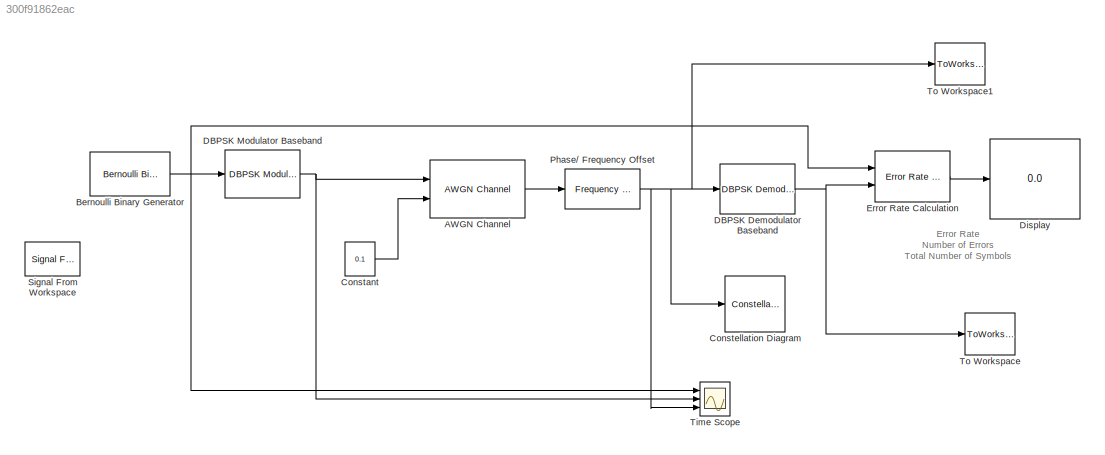
MODEL slx_300f91862eac
KIND model
CONFIG AbsTol = auto
CONFIG EnableMultiTasking = off
CONFIG FixedStep = auto
CONFIG MaxStep = auto
CONFIG MinStep = auto
CONFIG RelTol = 1e-3
CONFIG SampleTimeConstraint = Unconstrained
CONFIG SolverName = VariableStepAuto
CONFIG StartTime = 0.0
CONFIG StopTime = 5
BLOCK [Reference] AWGN Channel  REF=commchan3/AWGN
Channel
  Ports = [2, 1]
  SourceBlock = commchan3/AWGN\nChannel
  SourceProductBaseCode = CM
  SourceType = AWGN Channel
  UserDataPersistent = on
BLOCK [Reference] Bernoulli Binary Generator  REF=commrandsrc3/Bernoulli Binary
Generator
  Ports = [0, 1]
  SourceBlock = commrandsrc3/Bernoulli Binary\nGenerator
  SourceProductBaseCode = CM
  SourceType = Bernoulli Binary Generator
BLOCK [Constant] Constant
  Value = 0.1
  VectorParams1D = off
BLOCK [ConstellationDiagram] Constellation Diagram
  Ports = [1]
  ScopeSpecificationString = comm.scopes.ConstellationDiagramBlockCfg('CurrentConfiguration', extmgr.ConfigurationSet(extmgr.Configuration('Core','General UI',true),extmgr.Configuration('Core','Source UI',true),extmgr.Configuration('Sources','WiredSimulink',true),extmgr.Configuration('Sources','Simulink',false),extmgr.Configuration('Sources','File',false),extmgr.Configuration('Sources','Workspace',false),extmgr.Configuration(...<+1378ch>
BLOCK [Reference] DBPSK Demodulator Baseband  REF=commdigbbndpm3/DBPSK
Demodulator
Baseband
  Ports = [1, 1]
  SourceBlock = commdigbbndpm3/DBPSK\nDemodulator\nBaseband
  SourceProductBaseCode = CM
  SourceType = DBPSK Demodulator Baseband
BLOCK [Reference] DBPSK Modulator Baseband  REF=commdigbbndpm3/DBPSK
Modulator
Baseband
  Ports = [1, 1]
  SourceBlock = commdigbbndpm3/DBPSK\nModulator\nBaseband
  SourceProductBaseCode = CM
  SourceType = DBPSK Modulator Baseband
BLOCK [Display] Display
  Decimation = 1
  Ports = [1]
BLOCK [Reference] Error Rate Calculation  REF=commsink2/Error Rate
Calculation
  Ports = [2, 1]
  SourceBlock = commsink2/Error Rate\nCalculation
  SourceProductBaseCode = CM
  SourceType = Error Rate Calculation
BLOCK [Reference] Phase// Frequency Offset  REF=commrflib2/Phase//
Frequency
Offset
  Ports = [1, 1]
  SourceBlock = commrflib2/Phase//\nFrequency\nOffset
  SourceProductBaseCode = CM
  SourceType = Phase/Frequency Offset
BLOCK [Reference] Signal From Workspace  REF=dspsrcs4/Signal From
Workspace
  Commented = on
  Ports = [0, 1]
  SourceBlock = dspsrcs4/Signal From\nWorkspace
  SourceProductBaseCode = DS
  SourceType = Signal From Workspace
BLOCK [Scope] Time Scope
  DefaultConfigurationName = spbscopes.TimeScopeBlockCfg
  Floating = off
  NumInputPorts = 3
  Ports = [3]
  ScopeSpecificationString = spbscopes.TimeScopeBlockCfg('CurrentConfiguration', extmgr.ConfigurationSet(extmgr.Configuration('Core','General UI',true),extmgr.Configuration('Core','Source UI',true),extmgr.Configuration('Sources','WiredSimulink',true),extmgr.Configuration('Visuals','Time Domain',true,'DisplayLayoutDimensions',[3 1],'DisplayPropertyDefaults',struct('YLabelReal','Amplitude','AxesColor',[0 0 0],'ColorOrder',[1 1 ...<+3078ch>
  UserDataPersistent = on
BLOCK [ToWorkspace] To Workspace
  MaxDataPoints = 2560
  Ports = [1]
  SampleTime = -1
  Save2DSignal = 2-D array (concatenate along first dimension)
  VariableName = zout
BLOCK [ToWorkspace] To Workspace1
  MaxDataPoints = 2560
  Ports = [1]
  SampleTime = -1
  Save2DSignal = 2-D array (concatenate along first dimension)
  VariableName = yout1
ANNOTATION (root): Error Rate Number of Errors Total Number of Symbols
LINE AWGN Channel:1 -> Phase// Frequency Offset:1
NET Bernoulli Binary Generator:1 -> DBPSK Modulator Baseband:1, Error Rate Calculation:1, Time Scope:1
LINE Constant:1 -> AWGN Channel:2
NET DBPSK Demodulator Baseband:1 -> Error Rate Calculation:2, To Workspace:1
NET DBPSK Modulator Baseband:1 -> AWGN Channel:1, Time Scope:2
LINE Error Rate Calculation:1 -> Display:1
NET Phase// Frequency Offset:1 -> Constellation Diagram:1, DBPSK Demodulator Baseband:1, Time Scope:3, To Workspace1:1
note: NET lines group one-source signal fan-out (src -> all destinations, sorted); 1:1 wires keep LINE
